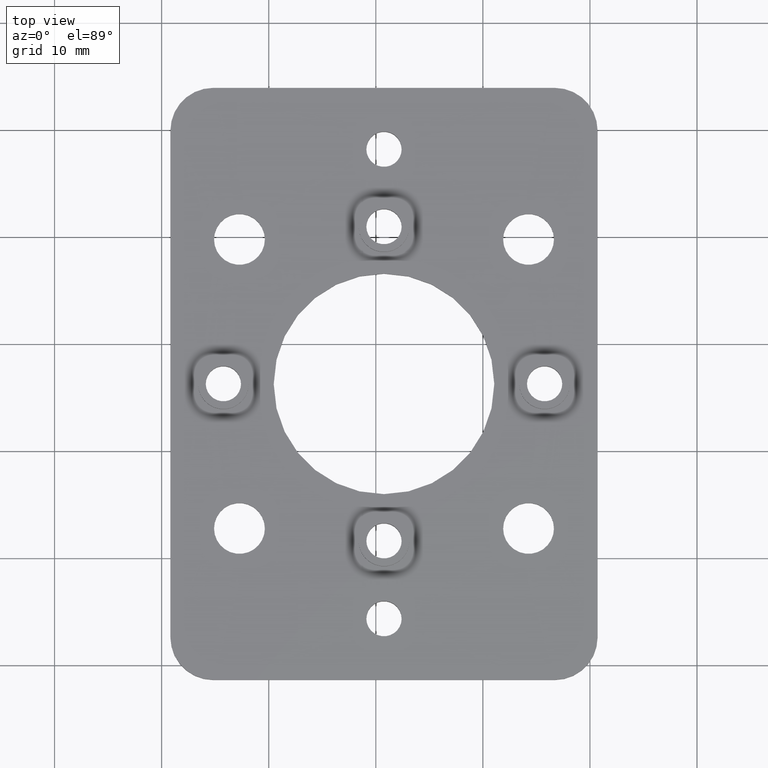
[diagram: clean part render]
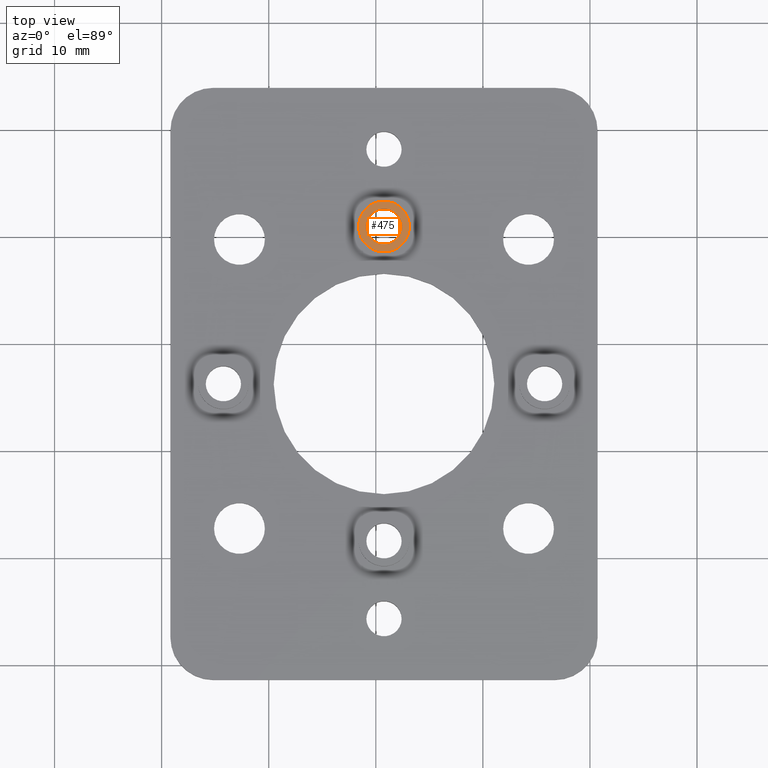
[diagram: same view with one face highlighted and labeled with its STEP entity id]
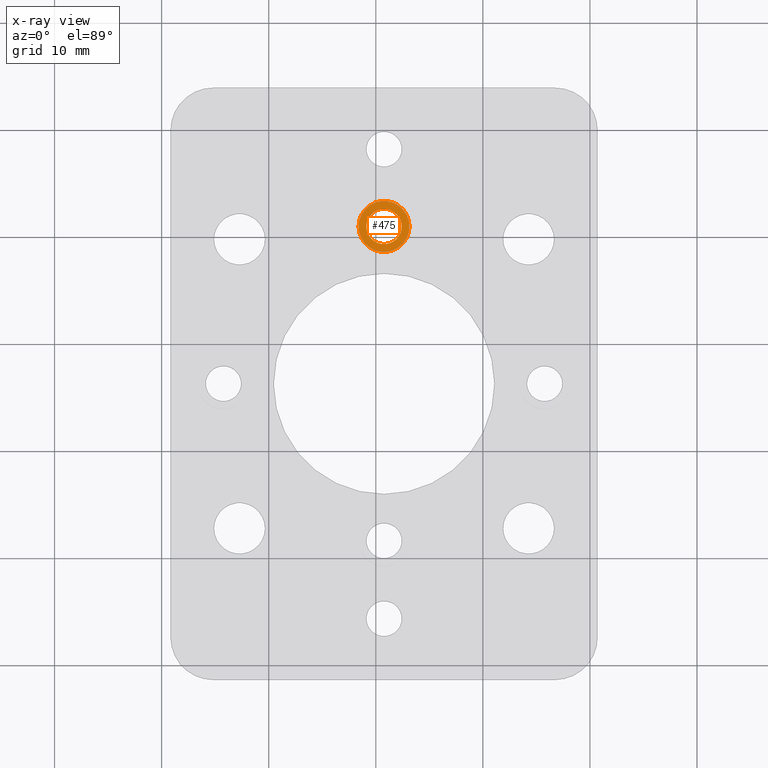
[diagram: x-ray of the same camera — body ghosted, the highlighted face saturated]
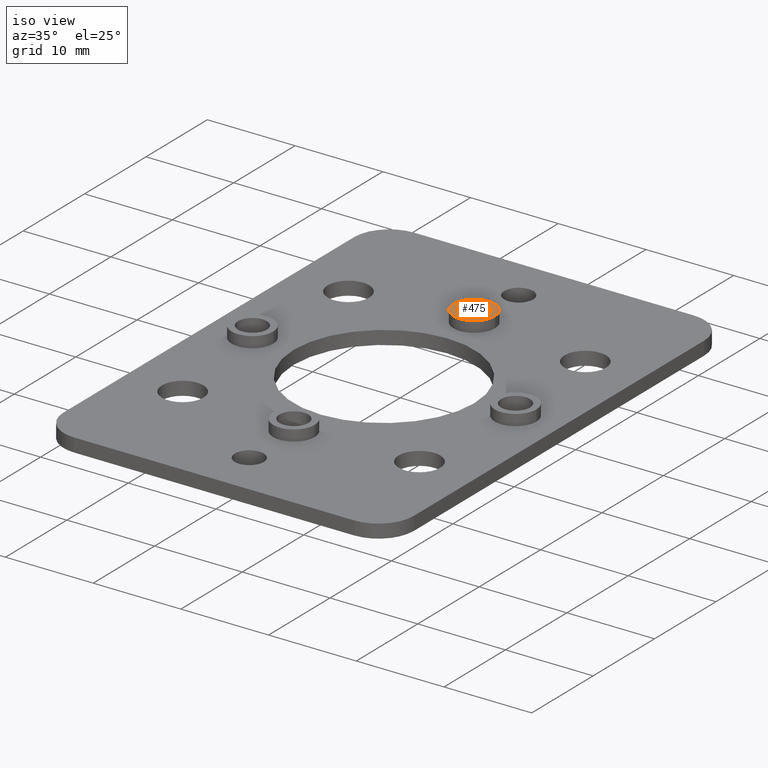
[diagram: same view with one face highlighted and labeled with its STEP entity id]
A machine part, top view. The second image highlights one B-rep face of the part: STEP entity #475.
The next image is the same camera in x-ray: the body ghosted, the highlighted face saturated — about 0% of this face is hidden behind the body in this view.
A second angle (iso view) of the same face is appended — the face is thin or edge-on in the first view.
In plain terms, the highlighted planar face has unit normal (0, 0, -1).
Its self-contained STEP definition (entity closure, byte-faithful):
#224=CARTESIAN_POINT('',(-17.583154132545623,20.939098087725849,2.800000000000000));
#225=VERTEX_POINT('',#224);
#226=CARTESIAN_POINT('',(-19.233154132545625,20.939098087725849,2.800000000000000));
#227=DIRECTION('',(0.0,0.0,-1.0));
#228=DIRECTION('',(-1.0,0.0,0.0));
#229=AXIS2_PLACEMENT_3D('',#226,#227,#228);
#230=CIRCLE('',#229,1.650000000000000);
#231=EDGE_CURVE('',#225,#225,#230,.T.);
#441=CARTESIAN_POINT('',(-16.858154132545625,20.939098087725849,2.800000000000000));
#442=VERTEX_POINT('',#441);
#443=CARTESIAN_POINT('',(-19.233154132545625,20.939098087725849,2.800000000000000));
#444=DIRECTION('',(0.0,0.0,-1.0));
#445=DIRECTION('',(-1.0,0.0,0.0));
#446=AXIS2_PLACEMENT_3D('',#443,#444,#445);
#447=CIRCLE('',#446,2.375000000000000);
#448=EDGE_CURVE('',#442,#442,#447,.T.);
#464=CARTESIAN_POINT('',(-19.233154132545625,20.939098087725849,2.800000000000000));
#465=DIRECTION('',(0.0,0.0,-1.0));
#466=DIRECTION('',(-1.0,0.0,0.0));
#467=AXIS2_PLACEMENT_3D('',#464,#465,#466);
#468=PLANE('',#467);
#469=ORIENTED_EDGE('',*,*,#448,.F.);
#470=EDGE_LOOP('',(#469));
#471=FACE_OUTER_BOUND('',#470,.T.);
#472=ORIENTED_EDGE('',*,*,#231,.T.);
#473=EDGE_LOOP('',(#472));
#474=FACE_BOUND('',#473,.T.);
#475=ADVANCED_FACE('',(#471,#474),#468,.F.);